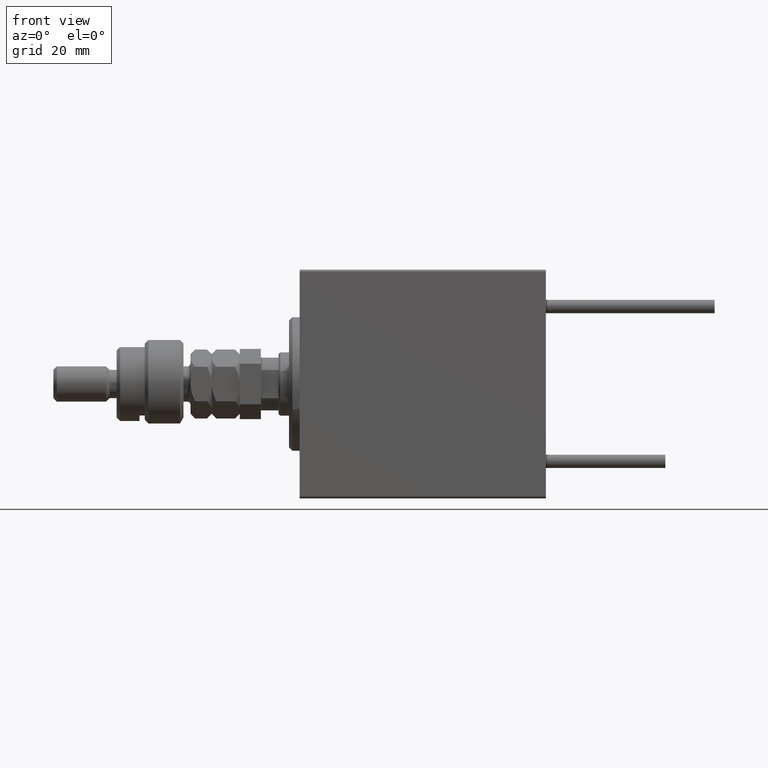
[diagram: clean part render]
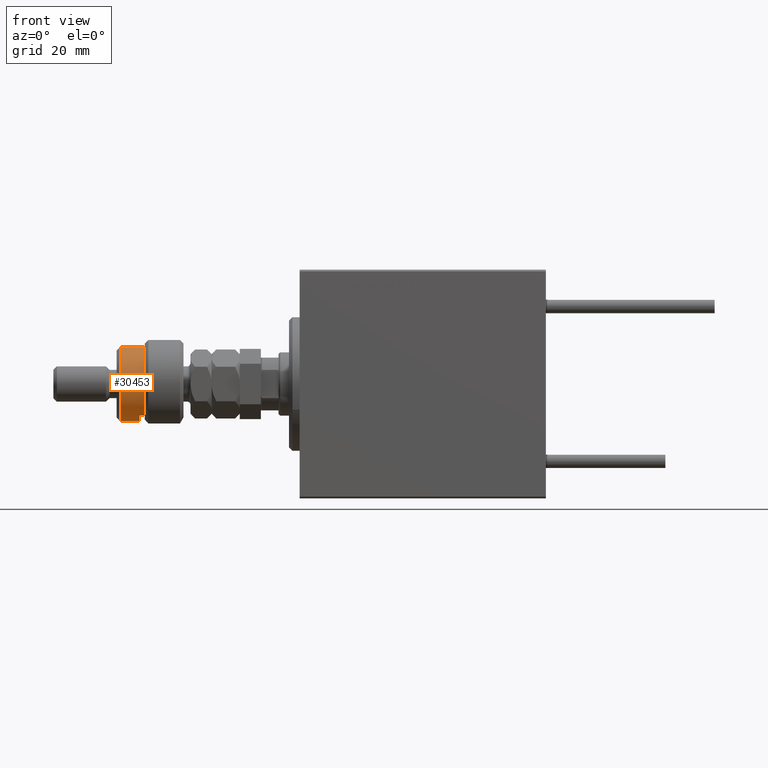
[diagram: same view with one face highlighted and labeled with its STEP entity id]
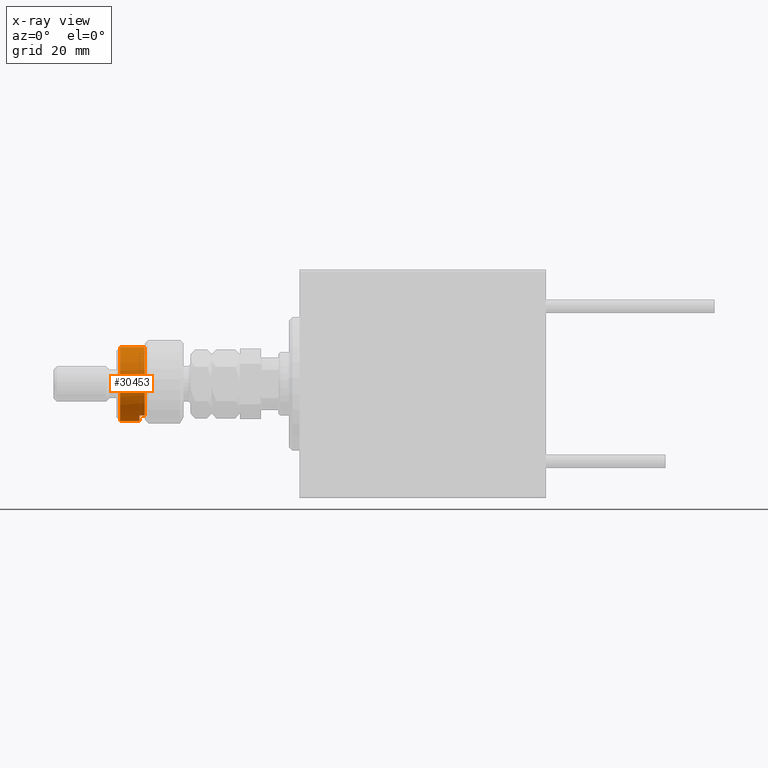
[diagram: x-ray of the same camera — body ghosted, the highlighted face saturated]
A machine part, front view. The second image highlights one B-rep face of the part: STEP entity #30453.
The next image is the same camera in x-ray: the body ghosted, the highlighted face saturated — about 0% of this face is hidden behind the body in this view.
In plain terms, the highlighted cylindrical surface (partial cylindrical patch) has radius 10.5 mm, axis along (1, -0, -0).
Its self-contained STEP definition (entity closure, byte-faithful):
#167 = AXIS2_PLACEMENT_3D ( 'NONE', #3951, #43772, #6944 ) ;
#1797 = EDGE_LOOP ( 'NONE', ( #35198, #44674, #14062, #11092, #31345, #7955 ) ) ;
#3589 = EDGE_CURVE ( 'NONE', #31599, #17538, #23266, .T. ) ;
#3951 = CARTESIAN_POINT ( 'NONE',  ( 0.000000000000000000, 0.000000000000000000, 12.50000000000000000 ) ) ;
#6944 = DIRECTION ( 'NONE',  ( -1.000000000000000000, 0.000000000000000000, 0.000000000000000000 ) ) ;
#7955 = ORIENTED_EDGE ( 'NONE', *, *, #46928, .T. ) ;
#8208 = CARTESIAN_POINT ( 'NONE',  ( 0.000000000000000000, 0.000000000000000000, 17.99999999999999645 ) ) ;
#8948 = EDGE_CURVE ( 'NONE', #31599, #42517, #39661, .T. ) ;
#9148 = CARTESIAN_POINT ( 'NONE',  ( 10.50000000000000000, 1.285879139104720831E-15, 17.99999999999999645 ) ) ;
#9852 = DIRECTION ( 'NONE',  ( 0.000000000000000000, 0.000000000000000000, 1.000000000000000000 ) ) ;
#11029 = DIRECTION ( 'NONE',  ( -1.000000000000000000, 0.000000000000000000, 0.000000000000000000 ) ) ;
#11092 = ORIENTED_EDGE ( 'NONE', *, *, #8948, .F. ) ;
#14062 = ORIENTED_EDGE ( 'NONE', *, *, #45036, .T. ) ;
#14195 = CARTESIAN_POINT ( 'NONE',  ( -8.944271909999159220, -5.500000000000000000, 11.00000000000000000 ) ) ;
#14386 = VERTEX_POINT ( 'NONE', #49246 ) ;
#16416 = DIRECTION ( 'NONE',  ( -0.000000000000000000, -0.000000000000000000, -1.000000000000000000 ) ) ;
#16749 = AXIS2_PLACEMENT_3D ( 'NONE', #43848, #47888, #11029 ) ;
#16820 = VERTEX_POINT ( 'NONE', #52814 ) ;
#17538 = VERTEX_POINT ( 'NONE', #14195 ) ;
#17655 = CARTESIAN_POINT ( 'NONE',  ( 0.000000000000000000, 0.000000000000000000, 11.00000000000000000 ) ) ;
#18946 = DIRECTION ( 'NONE',  ( -0.000000000000000000, -0.000000000000000000, -1.000000000000000000 ) ) ;
#19771 = DIRECTION ( 'NONE',  ( 0.000000000000000000, 0.000000000000000000, -1.000000000000000000 ) ) ;
#21433 = DIRECTION ( 'NONE',  ( 1.000000000000000000, 0.000000000000000000, 0.000000000000000000 ) ) ;
#21533 = CARTESIAN_POINT ( 'NONE',  ( 10.50000000000000000, 1.285879139104720831E-15, 19.00000000000000000 ) ) ;
#22662 = LINE ( 'NONE', #31533, #52820 ) ;
#23266 = LINE ( 'NONE', #39410, #44175 ) ;
#24088 = DIRECTION ( 'NONE',  ( 1.000000000000000000, 0.000000000000000000, 0.000000000000000000 ) ) ;
#25579 = LINE ( 'NONE', #21533, #30268 ) ;
#25904 = CARTESIAN_POINT ( 'NONE',  ( -10.50000000000000000, 0.000000000000000000, 12.50000000000000000 ) ) ;
#27239 = DIRECTION ( 'NONE',  ( -0.000000000000000000, -0.000000000000000000, -1.000000000000000000 ) ) ;
#29503 = CARTESIAN_POINT ( 'NONE',  ( -8.944271909999159220, -5.500000000000000000, 12.50000000000000000 ) ) ;
#30074 = VERTEX_POINT ( 'NONE', #9148 ) ;
#30268 = VECTOR ( 'NONE', #16416, 1000.000000000000000 ) ;
#30453 = ADVANCED_FACE ( 'NONE', ( #39287 ), #31470, .T. ) ;
#31345 = ORIENTED_EDGE ( 'NONE', *, *, #3589, .T. ) ;
#31470 = CYLINDRICAL_SURFACE ( 'NONE', #16749, 10.50000000000000000 ) ;
#31533 = CARTESIAN_POINT ( 'NONE',  ( -10.50000000000000000, 0.000000000000000000, 19.00000000000000000 ) ) ;
#31599 = VERTEX_POINT ( 'NONE', #29503 ) ;
#33795 = CIRCLE ( 'NONE', #41521, 10.50000000000000000 ) ;
#35198 = ORIENTED_EDGE ( 'NONE', *, *, #36694, .F. ) ;
#36694 = EDGE_CURVE ( 'NONE', #30074, #16820, #25579, .T. ) ;
#38468 = EDGE_CURVE ( 'NONE', #30074, #14386, #33795, .T. ) ;
#39287 = FACE_OUTER_BOUND ( 'NONE', #1797, .T. ) ;
#39410 = CARTESIAN_POINT ( 'NONE',  ( -8.944271909999159220, -5.500000000000000000, 19.00000000000000000 ) ) ;
#39661 = CIRCLE ( 'NONE', #167, 10.50000000000000000 ) ;
#41521 = AXIS2_PLACEMENT_3D ( 'NONE', #8208, #19771, #24088 ) ;
#42517 = VERTEX_POINT ( 'NONE', #25904 ) ;
#42594 = AXIS2_PLACEMENT_3D ( 'NONE', #17655, #9852, #21433 ) ;
#43772 = DIRECTION ( 'NONE',  ( 0.000000000000000000, 0.000000000000000000, -1.000000000000000000 ) ) ;
#43848 = CARTESIAN_POINT ( 'NONE',  ( 0.000000000000000000, 0.000000000000000000, 19.00000000000000000 ) ) ;
#44175 = VECTOR ( 'NONE', #18946, 1000.000000000000000 ) ;
#44674 = ORIENTED_EDGE ( 'NONE', *, *, #38468, .T. ) ;
#45036 = EDGE_CURVE ( 'NONE', #14386, #42517, #22662, .T. ) ;
#46928 = EDGE_CURVE ( 'NONE', #17538, #16820, #48608, .T. ) ;
#47888 = DIRECTION ( 'NONE',  ( -0.000000000000000000, -0.000000000000000000, -1.000000000000000000 ) ) ;
#48608 = CIRCLE ( 'NONE', #42594, 10.50000000000000000 ) ;
#49246 = CARTESIAN_POINT ( 'NONE',  ( -10.50000000000000000, 0.000000000000000000, 17.99999999999999645 ) ) ;
#52814 = CARTESIAN_POINT ( 'NONE',  ( 10.50000000000000000, 1.285879139104720831E-15, 11.00000000000000000 ) ) ;
#52820 = VECTOR ( 'NONE', #27239, 1000.000000000000000 ) ;